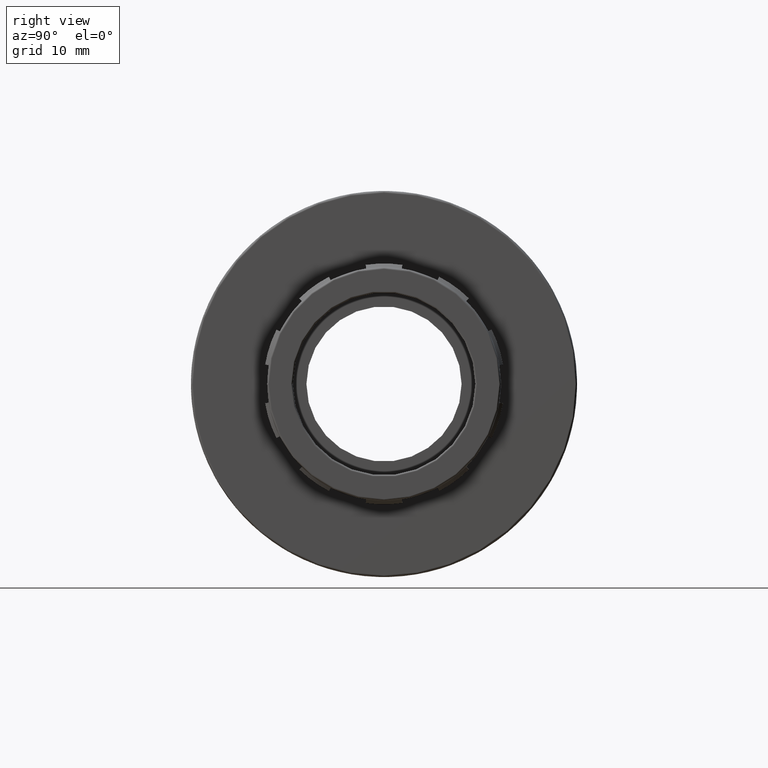
[diagram: clean part render]
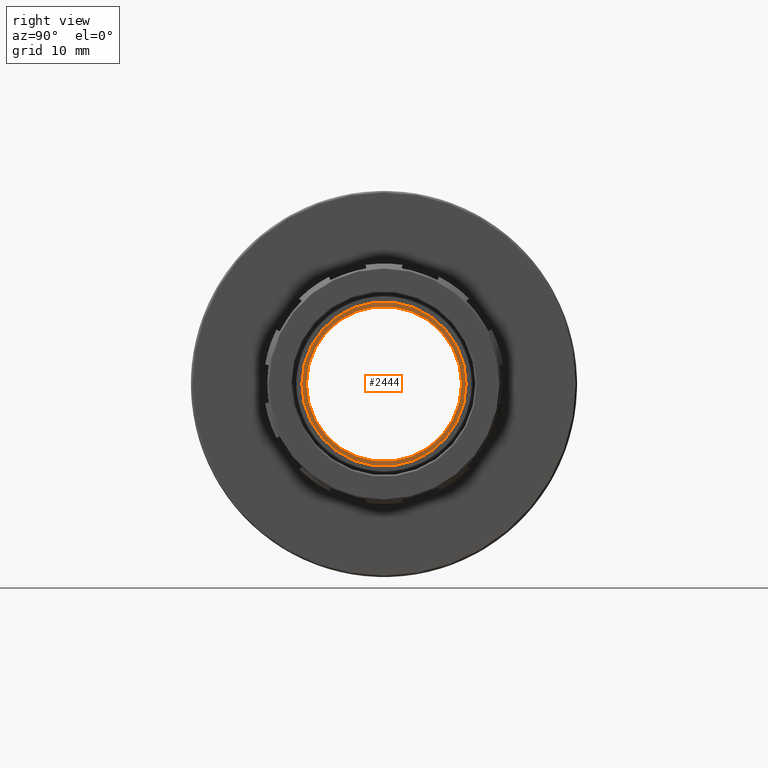
[diagram: same view with one face highlighted and labeled with its STEP entity id]
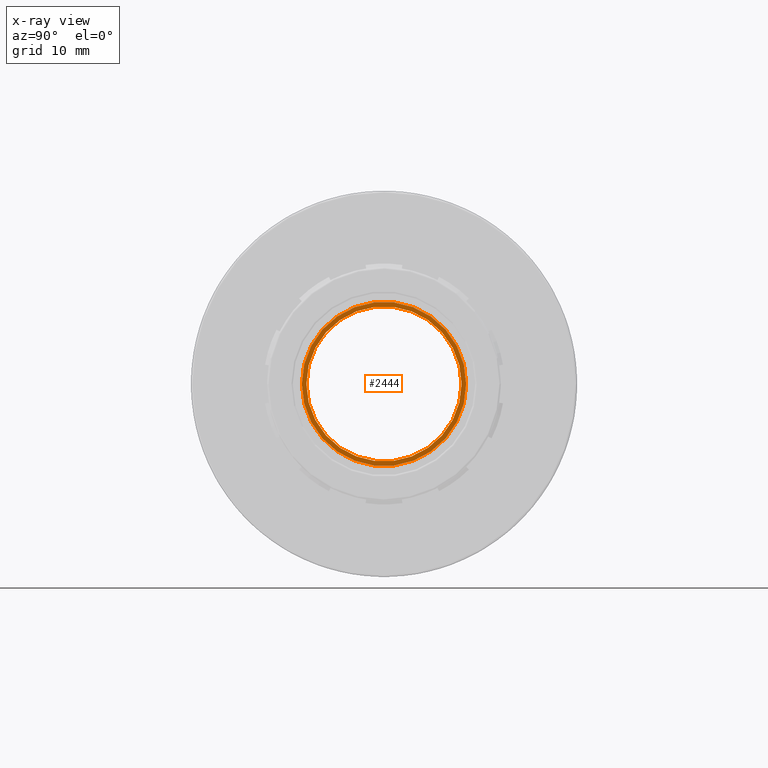
[diagram: x-ray of the same camera — body ghosted, the highlighted face saturated]
A machine part, right view. The second image highlights one B-rep face of the part: STEP entity #2444.
The next image is the same camera in x-ray: the body ghosted, the highlighted face saturated — about 0% of this face is hidden behind the body in this view.
In plain terms, the highlighted planar face has unit normal (1, 0, 0).
Its self-contained STEP definition (entity closure, byte-faithful):
#65=FACE_BOUND('',#489,.T.);
#207=CIRCLE('',#2698,10.249725);
#208=CIRCLE('',#2700,10.85265);
#338=FACE_OUTER_BOUND('',#488,.T.);
#488=EDGE_LOOP('',(#2221));
#489=EDGE_LOOP('',(#2222));
#1184=VERTEX_POINT('',#4154);
#1185=VERTEX_POINT('',#4157);
#1533=EDGE_CURVE('',#1184,#1184,#207,.T.);
#1534=EDGE_CURVE('',#1185,#1185,#208,.T.);
#2221=ORIENTED_EDGE('',*,*,#1534,.F.);
#2222=ORIENTED_EDGE('',*,*,#1533,.T.);
#2313=PLANE('',#2699);
#2444=ADVANCED_FACE('',(#338,#65),#2313,.T.);
#2698=AXIS2_PLACEMENT_3D('',#4155,#3429,#3430);
#2699=AXIS2_PLACEMENT_3D('',#4156,#3431,#3432);
#2700=AXIS2_PLACEMENT_3D('',#4158,#3433,#3434);
#3429=DIRECTION('center_axis',(-1.,-1.83697019872103E-16,0.));
#3430=DIRECTION('ref_axis',(0.,0.,1.));
#3431=DIRECTION('center_axis',(1.,1.83697019872103E-16,0.));
#3432=DIRECTION('ref_axis',(0.,0.,-1.));
#3433=DIRECTION('center_axis',(-1.,-1.83697019872103E-16,0.));
#3434=DIRECTION('ref_axis',(0.,0.,1.));
#4154=CARTESIAN_POINT('',(11.75,-10.249725,0.));
#4155=CARTESIAN_POINT('Origin',(11.75,8.06429917238532E-15,0.));
#4156=CARTESIAN_POINT('Origin',(11.75,-10.85265,0.));
#4157=CARTESIAN_POINT('',(11.75,-10.85265,0.));
#4158=CARTESIAN_POINT('Origin',(11.75,8.06429917238532E-15,0.));